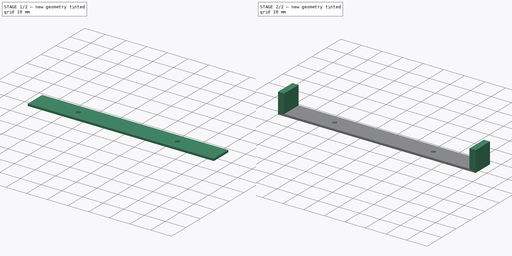
[diagram: build sequence overview — one tinted view per stage of 2, left to right]
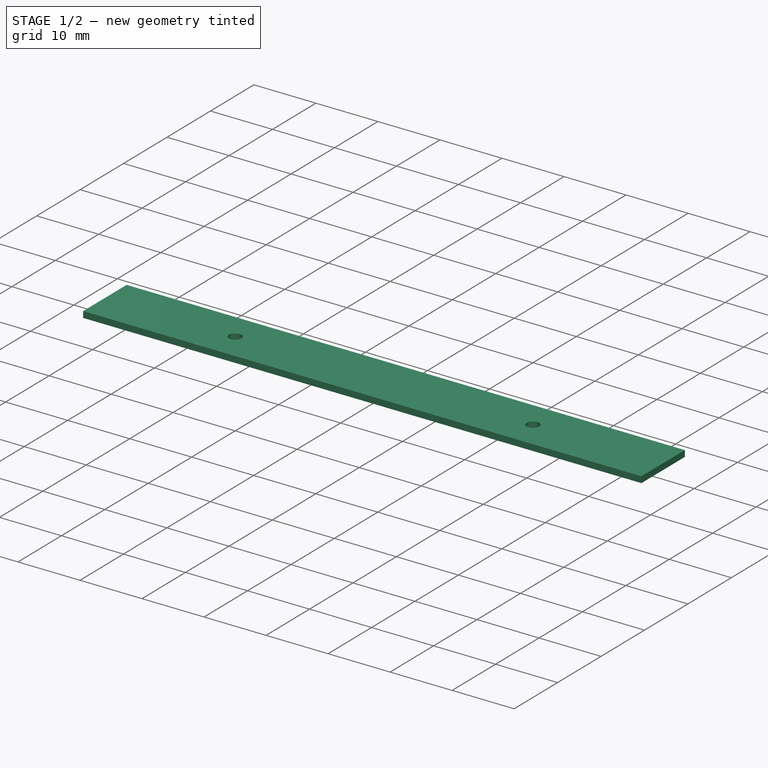
[diagram: stage 1 of 2 — iso view after this stage's code; geometry added in this stage tinted green]
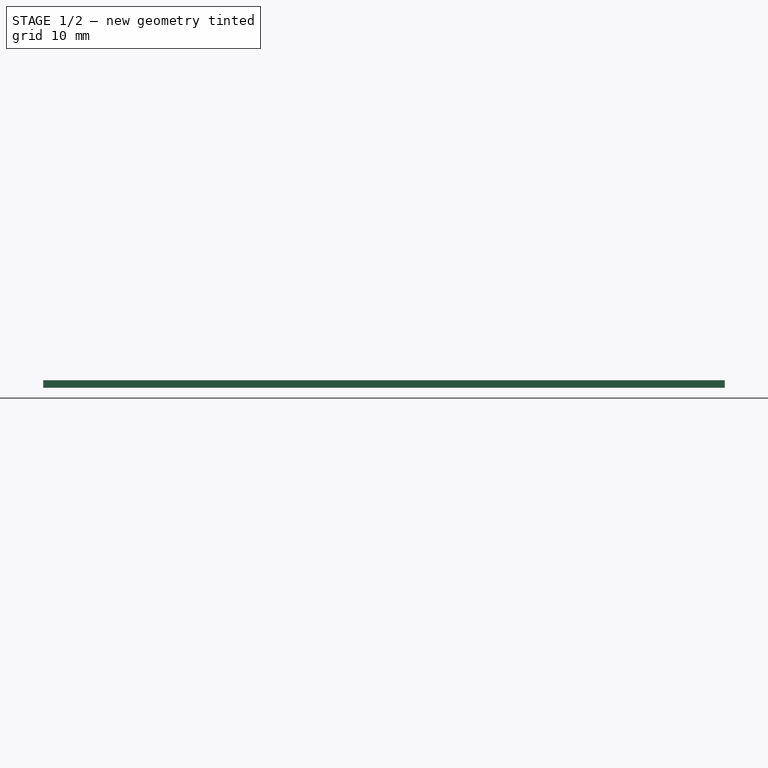
[diagram: stage 1 of 2 — front view after this stage's code; geometry added in this stage tinted green]
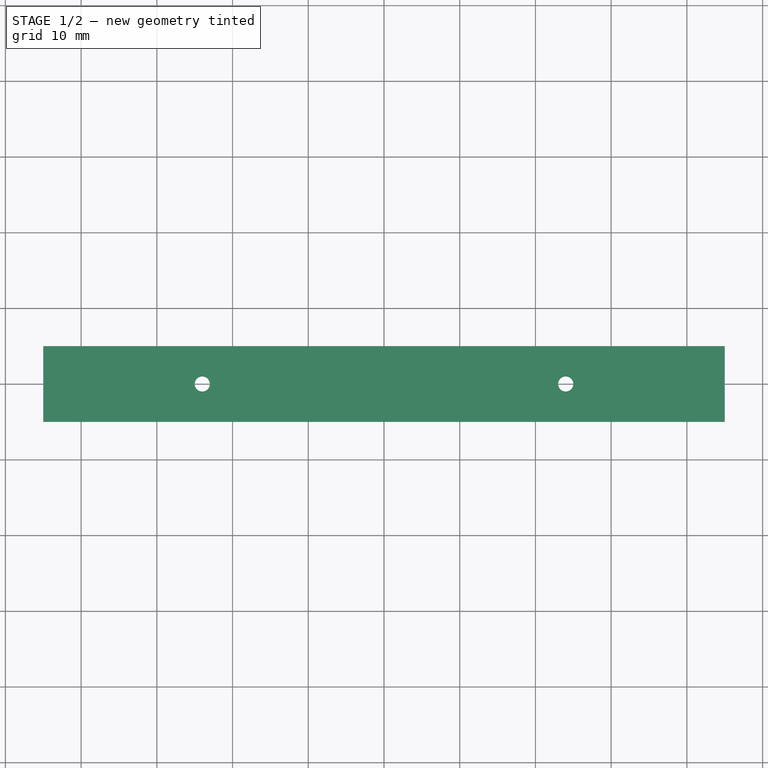
[diagram: stage 1 of 2 — top view after this stage's code; geometry added in this stage tinted green]
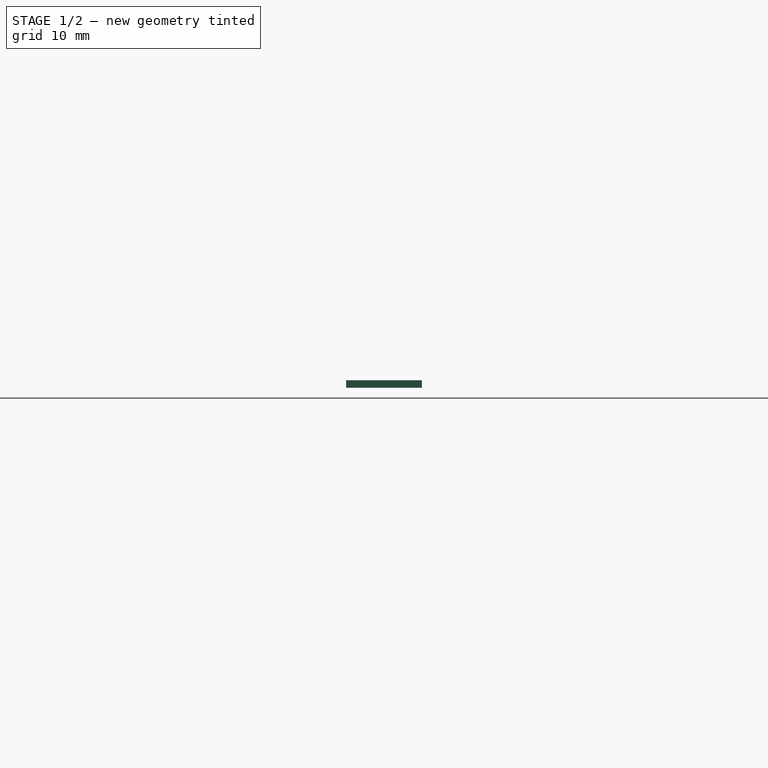
[diagram: stage 1 of 2 — right view after this stage's code; geometry added in this stage tinted green]
FCSTD DOCUMENT  (FreeCAD 0.22R38127 (Git))
Label: gate-template
License: All rights reserved
LicenseURL: http://en.wikipedia.org/wiki/All_rights_reserved
objects: Sketcher::SketchObject×2, PartDesign::Pad×2, PartDesign::Body×1
note: 7 computed .brp shape members not serialized (recipe doc carries the construction recipe); baked Part::Feature solids carry a one-line shape summary decoded from their .brp

FEATURE [Sketcher::SketchObject] Sketch
  AttachmentSupport = -> [XY_Plane]
  FullyConstrained = true
  MapMode = 5
  sketch-geometry (6):
    g0: LineSegment StartX=-45 StartY=5 StartZ=0 EndX=-45 EndY=-5 EndZ=0
    g1: LineSegment StartX=-45 StartY=-5 StartZ=0 EndX=45 EndY=-5 EndZ=0
    g2: LineSegment StartX=45 StartY=-5 StartZ=0 EndX=45 EndY=5 EndZ=0
    g3: LineSegment StartX=45 StartY=5 StartZ=0 EndX=-45 EndY=5 EndZ=0
    g4: Circle CenterX=-24 CenterY=0 CenterZ=0 NormalX=0 NormalY=0 NormalZ=1 AngleXU=0 Radius=1
    g5: Circle CenterX=24 CenterY=0 CenterZ=0 NormalX=0 NormalY=0 NormalZ=1 AngleXU=0 Radius=1
  constraints (16):
    c: Coincident(g0,g1)
    c: Coincident(g1,g2)
    c: Coincident(g2,g3)
    c: Coincident(g3,g0)
    c: Vertical(g0)
    c: Vertical(g2)
    c: Horizontal(g1)
    c: Horizontal(g3)
    c: DistanceX(g3,g3) = 90
    c: DistanceY(g0,g0) = 10
    c: Symmetric(g0,g2,g-1)
    c: PointOnObject(g4,g-1)
    c: Symmetric(g4,g5,g-1)
    c: DistanceX(g4,g5) = 48
    c: Equal(g4,g5)
    c: Diameter(g4) = 2
FEATURE [PartDesign::Pad] Pad
  Direction = (0,0,1)
  Length = 1
  Length2 = 10
  Profile = -> Sketch
  ReferenceAxis = -> Sketch [N_Axis]
  Refine = true
  Suppressed = false
  Type = 0
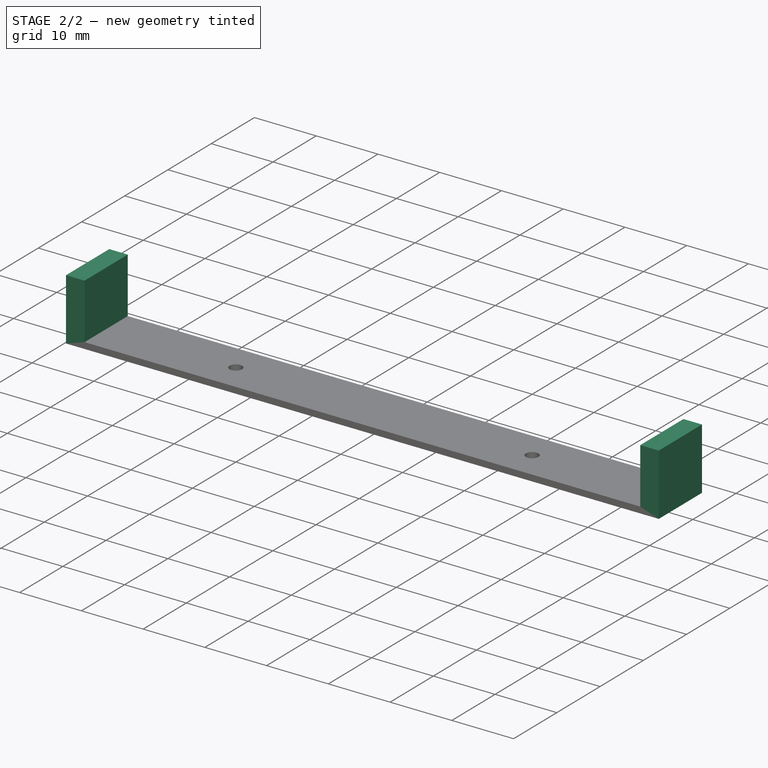
[diagram: stage 2 of 2 — iso view after this stage's code; geometry added in this stage tinted green]
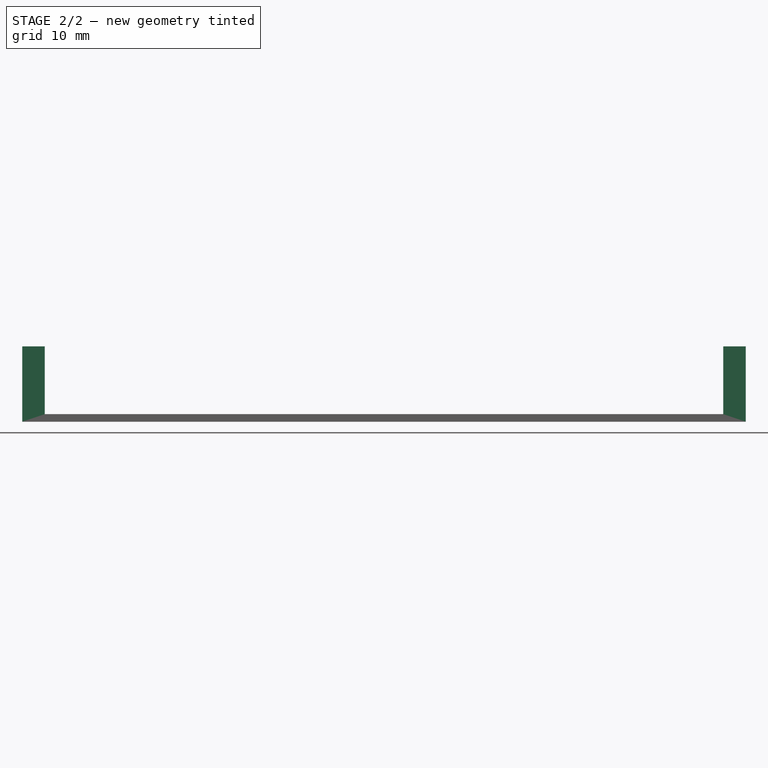
[diagram: stage 2 of 2 — front view after this stage's code; geometry added in this stage tinted green]
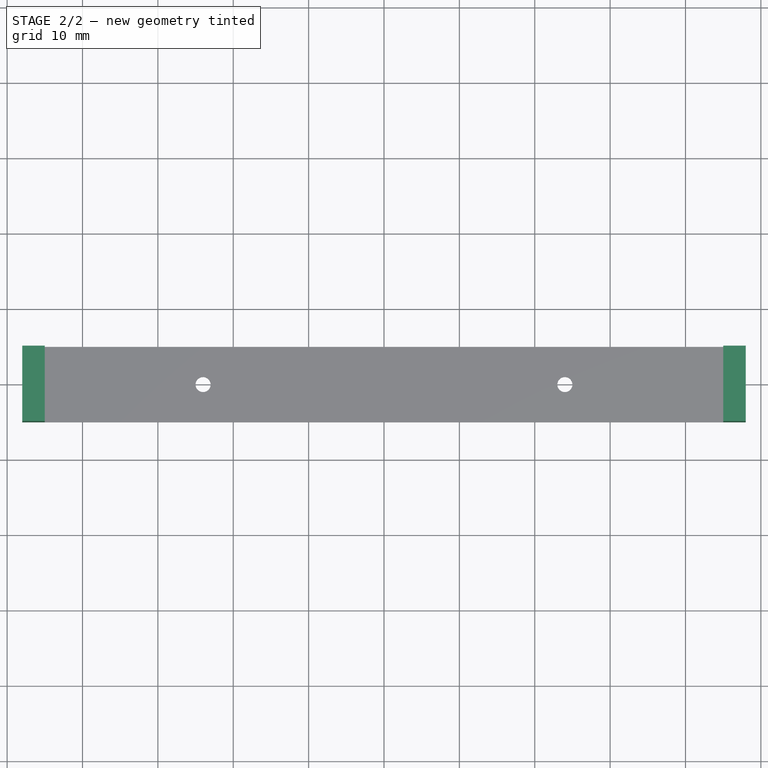
[diagram: stage 2 of 2 — top view after this stage's code; geometry added in this stage tinted green]
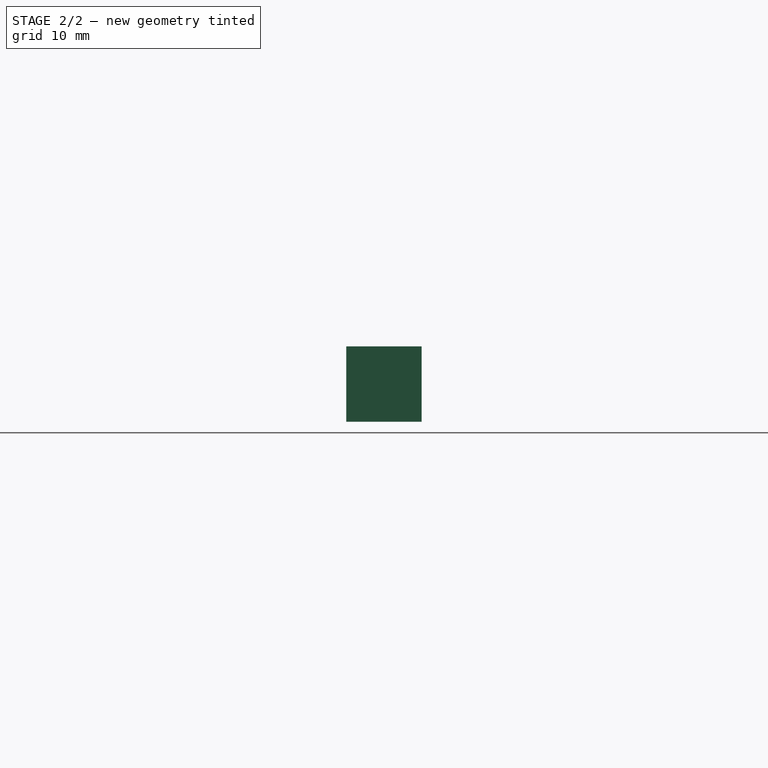
[diagram: stage 2 of 2 — right view after this stage's code; geometry added in this stage tinted green]
FEATURE [Sketcher::SketchObject] Sketch001
  AttachmentSupport = -> [XY_Plane]
  ExternalGeometry = -> [Pad]
  FullyConstrained = true
  MapMode = 5
  sketch-geometry (8):
    g0: LineSegment StartX=-48 StartY=5 StartZ=0 EndX=-48 EndY=-5 EndZ=0
    g1: LineSegment StartX=-48 StartY=-5 StartZ=0 EndX=-45 EndY=-5 EndZ=0
    g2: LineSegment StartX=-45 StartY=-5 StartZ=0 EndX=-45 EndY=5 EndZ=0
    g3: LineSegment StartX=-45 StartY=5 StartZ=0 EndX=-48 EndY=5 EndZ=0
    g4: LineSegment StartX=48 StartY=5 StartZ=0 EndX=45 EndY=5 EndZ=0
    g5: LineSegment StartX=45 StartY=5 StartZ=0 EndX=45 EndY=-5 EndZ=0
    g6: LineSegment StartX=45 StartY=-5 StartZ=0 EndX=48 EndY=-5 EndZ=0
    g7: LineSegment StartX=48 StartY=-5 StartZ=0 EndX=48 EndY=5 EndZ=0
  constraints (20):
    c: Coincident(g0,g1)
    c: Coincident(g1,g2)
    c: Coincident(g2,g3)
    c: Coincident(g3,g0)
    c: Vertical(g0)
    c: Horizontal(g1)
    c: Horizontal(g3)
    c: Coincident(g1,g-3)
    c: Coincident(g4,g5)
    c: Coincident(g5,g6)
    c: Coincident(g6,g7)
    c: Coincident(g7,g4)
    c: Horizontal(g4)
    c: Horizontal(g6)
    c: Vertical(g7)
    c: Coincident(g5,g-4)
    c: Equal(g3,g4)
    c: DistanceX(g3,g3) = 3
    c: Coincident(g4,g-4)
    c: Coincident(g2,g-3)
FEATURE [PartDesign::Pad] Pad001
  BaseFeature = -> Pad
  Direction = (0,0,1)
  Length = 10
  Length2 = 10
  Profile = -> Sketch001
  ReferenceAxis = -> Sketch001 [N_Axis]
  Refine = true
  Suppressed = false
  Type = 0
FEATURE [PartDesign::Body] Body
  AllowCompound = false
  Group = -> [Sketch,Pad,Sketch001,Pad001]
  Origin = -> Origin
  Tip = -> Pad001
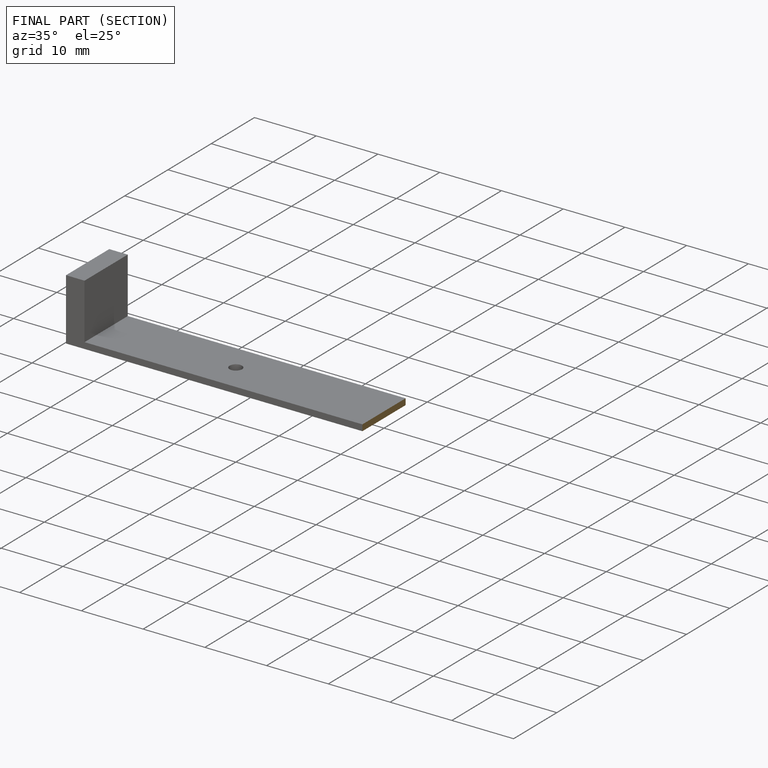
[diagram: finished part — half-section view (interior)]
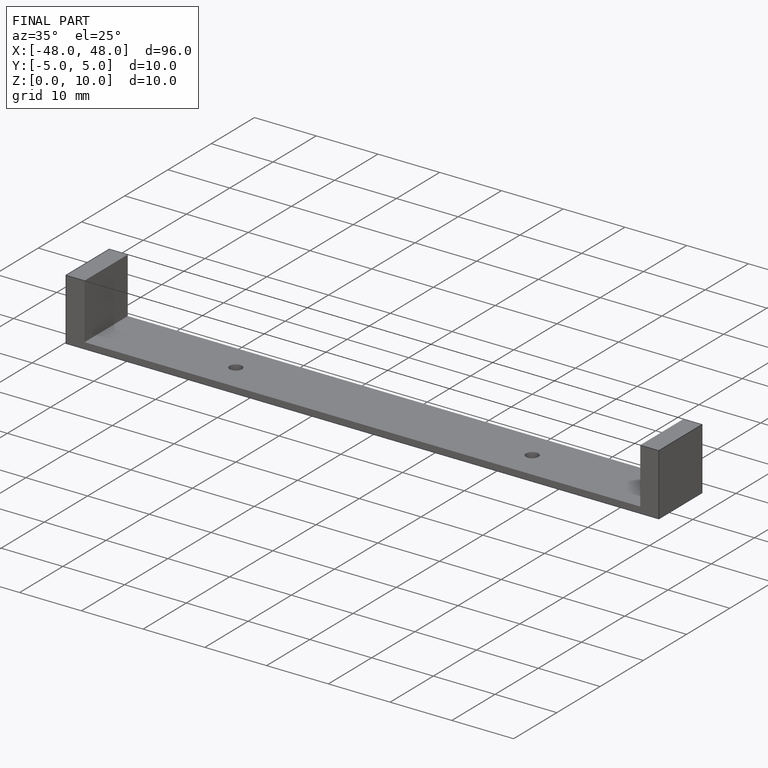
[diagram: finished part — iso view with bounding-box wireframe]
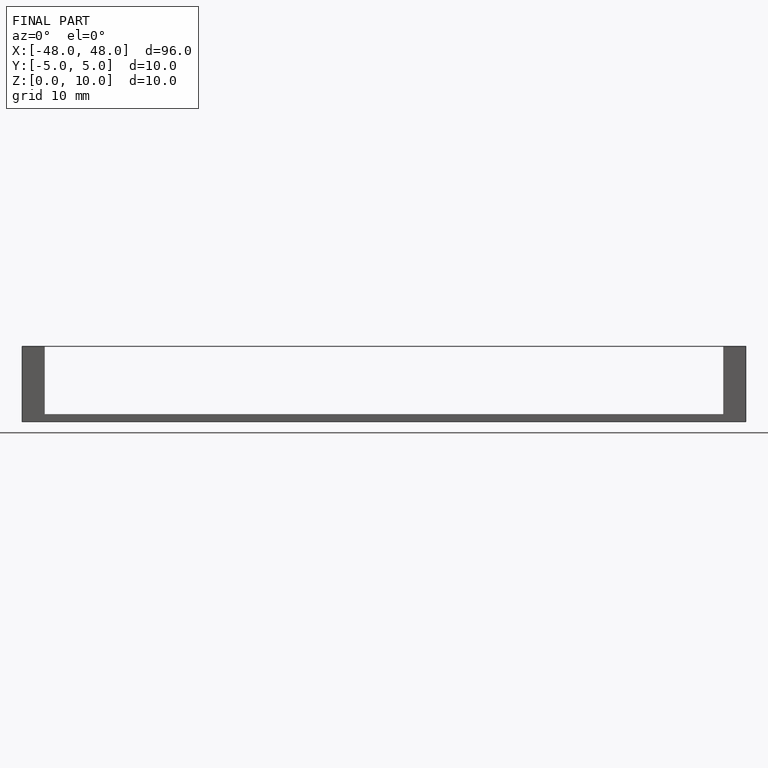
[diagram: finished part — front view with bounding-box wireframe]
